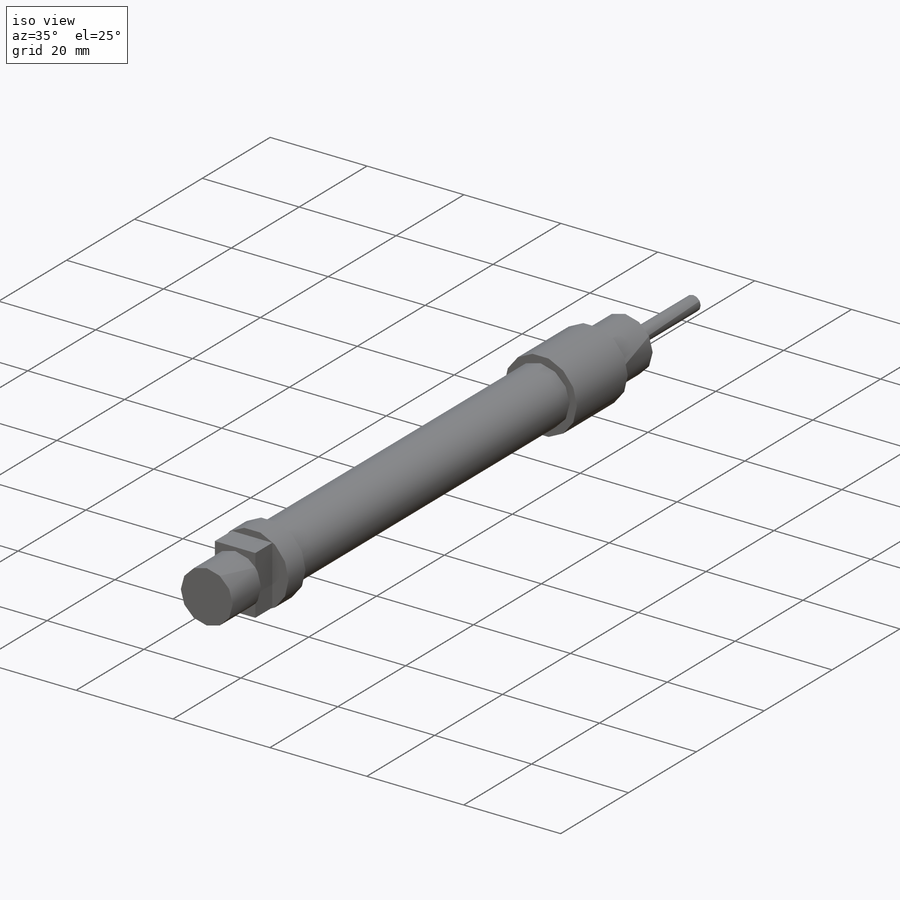
[diagram: iso view]
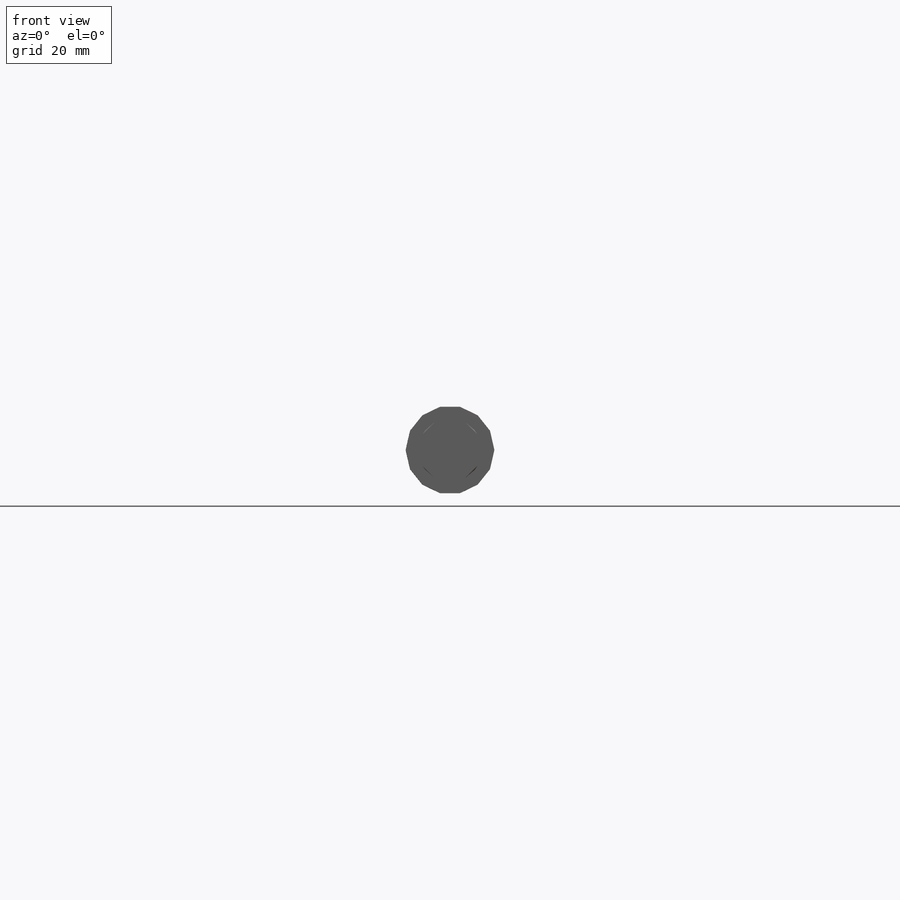
[diagram: front view]
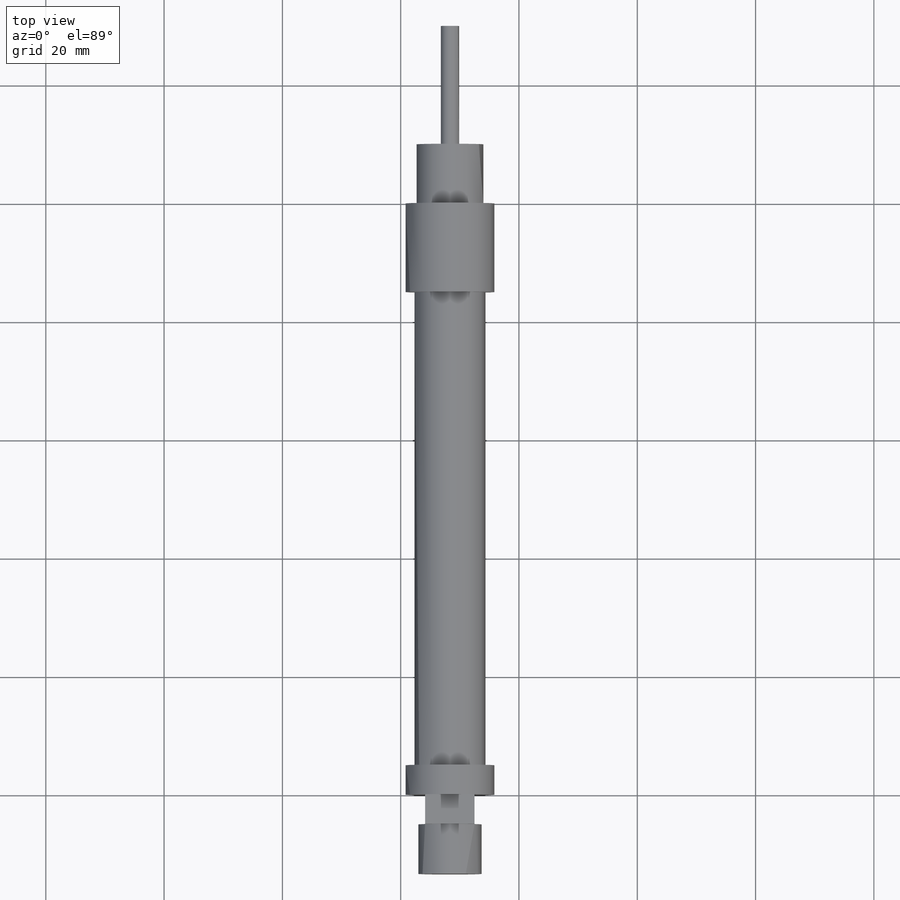
[diagram: top view]
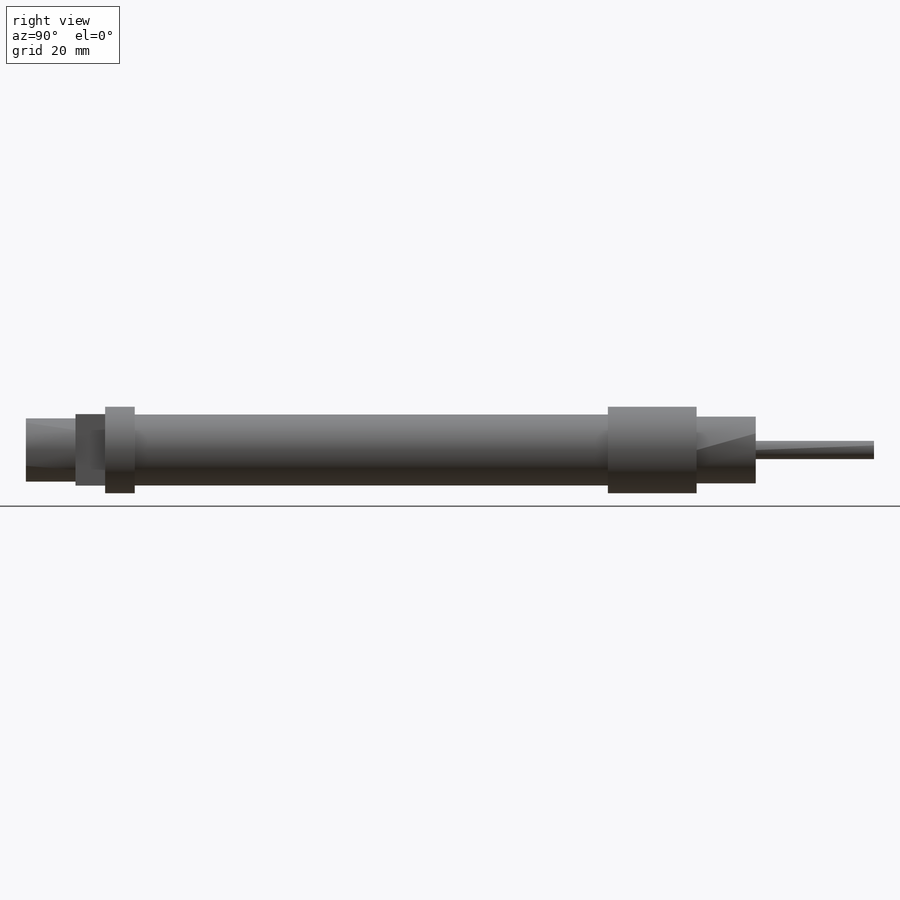
[diagram: right view]
SOLIDWORKS PART (.sldprt)
format: sldprt  version: not decoded by parser v0  size: 211,456 bytes
history: native  units: mm
features: sketch x9, extrude x7, plane x3, material x1 (+9 scaffold rows collapsed)
feature tree (29):
  scaffold x9  (default folders/planes/origin — collapsed)
  material  "Material <sin especificar>"
  plane  "Alzado"
  plane  "Planta"
  plane  "Vista lateral"
  sketch  "Croquis1"  dims[D1=15.0mm]
  extrude  "Saliente-Extruir1"  Depth=15mm
  sketch  "Croquis2"  dims[D1=~23.176737mm]
  extrude  "Saliente-Extruir2"  Depth=80mm
  sketch  "Croquis3"  dims[D1=~20.942167mm]
  sketch  "Croquis4"  dims[D1=15.0mm]
  extrude  "Saliente-Extruir3"  Depth=5mm
  sketch  "Croquis5"  dims[D1=~6.013646mm]
  extrude  "Saliente-Extruir4"  Depth=5mm
  sketch  "Croquis6"  dims[D1=~28.970764mm]
  sketch  "Croquis7"  dims[D1=10.7mm]
  extrude  "Saliente-Extruir6"  Depth=8.39mm
  sketch  "Croquis8"  dims[D1=~11.282398mm]
  extrude  "Saliente-Extruir7"  Depth=10mm
  sketch  "Croquis9"  dims[D1=~3.081027mm]
  extrude  "Saliente-Extruir8"  Depth=20mm
decode coverage: 16 of 16 modeling features carry decoded parameters
note: ~ marks probable driven/reference dimensions
note: suppression state not decoded; provenance and decode notes live in map.json
